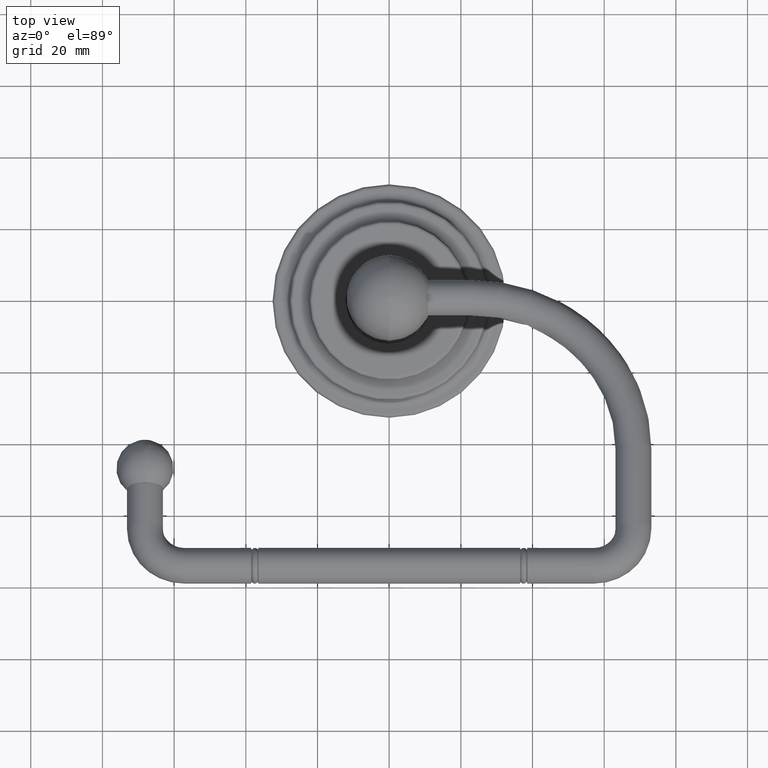
[diagram: clean part render]
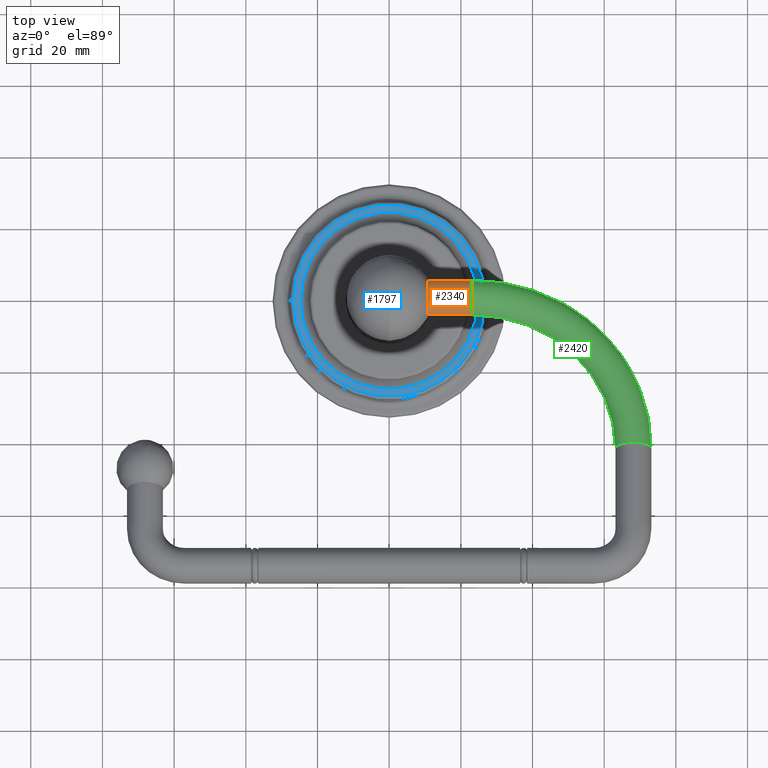
[diagram: same view with three faces highlighted in distinct colors, each labeled with its STEP entity id]
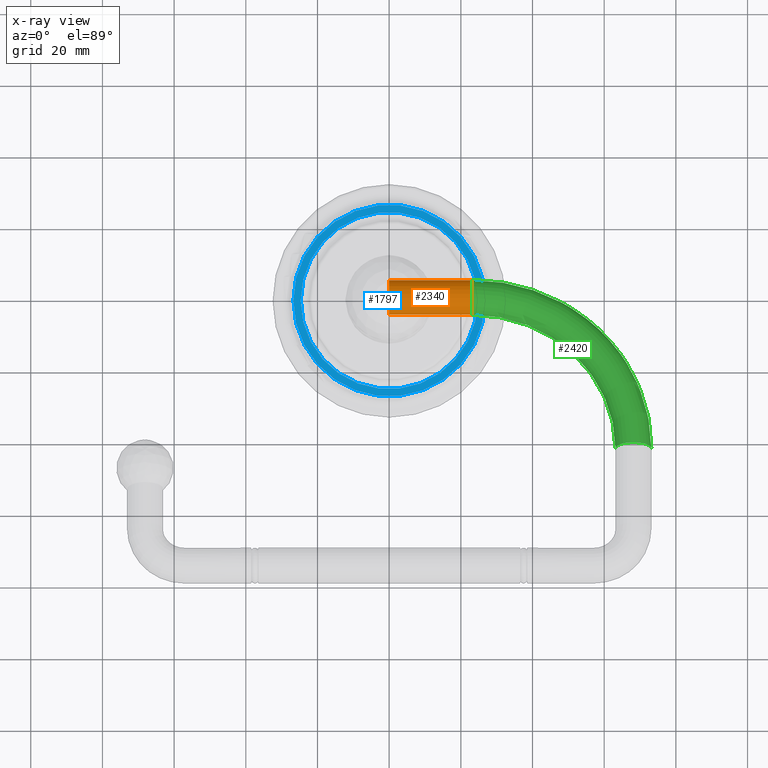
[diagram: x-ray of the same camera — body ghosted, the three highlighted faces saturated]
A machine part, top view with three faces highlighted in distinct colors.
The next image is the same camera in x-ray (body ghosted, the three faces saturated) — at least one of them is partly hidden behind the body in this view.
Their STEP definitions:

[orange] entity #2340 — the highlighted cylindrical surface (edge-blend (fillet) strip) has radius 5.0038 mm, axis along (1, 0, 0).
#660=CARTESIAN_POINT('',(0.E0,0.E0,1.947E0));
#661=DIRECTION('',(1.E0,0.E0,0.E0));
#662=DIRECTION('',(0.E0,9.396926207859E-1,-3.420201433257E-1));
#663=AXIS2_PLACEMENT_3D('',#660,#661,#662);
#705=DIRECTION('',(1.E0,0.E0,0.E0));
#706=VECTOR('',#705,9.11E-1);
#707=CARTESIAN_POINT('',(0.E0,1.851194462948E-1,1.879622031765E0));
#708=LINE('',#707,#706);
#712=DIRECTION('',(1.E0,0.E0,0.E0));
#713=VECTOR('',#712,9.11E-1);
#714=CARTESIAN_POINT('',(0.E0,-1.851194462948E-1,2.014377968235E0));
#715=LINE('',#714,#713);
#779=CARTESIAN_POINT('',(9.11E-1,0.E0,1.947E0));
#780=DIRECTION('',(1.E0,0.E0,0.E0));
#781=DIRECTION('',(0.E0,9.396926207859E-1,-3.420201433257E-1));
#782=AXIS2_PLACEMENT_3D('',#779,#780,#781);
#1459=CARTESIAN_POINT('',(9.11E-1,1.851194462948E-1,1.879622031765E0));
#1460=CARTESIAN_POINT('',(9.11E-1,-1.851194462948E-1,2.014377968235E0));
#1461=VERTEX_POINT('',#1459);
#1462=VERTEX_POINT('',#1460);
#1515=CARTESIAN_POINT('',(0.E0,1.851194462948E-1,1.879622031765E0));
#1516=CARTESIAN_POINT('',(0.E0,-1.851194462948E-1,2.014377968235E0));
#1517=VERTEX_POINT('',#1515);
#1518=VERTEX_POINT('',#1516);
#2326=CARTESIAN_POINT('',(-2.07E-1,0.E0,1.947E0));
#2327=DIRECTION('',(1.E0,0.E0,0.E0));
#2328=DIRECTION('',(0.E0,9.396926207859E-1,-3.420201433257E-1));
#2329=AXIS2_PLACEMENT_3D('',#2326,#2327,#2328);
#2330=CYLINDRICAL_SURFACE('',#2329,1.97E-1);
#2331=ORIENTED_EDGE('',*,*,#2304,.F.);
#2333=ORIENTED_EDGE('',*,*,#2332,.T.);
#2335=ORIENTED_EDGE('',*,*,#2334,.T.);
#2337=ORIENTED_EDGE('',*,*,#2336,.F.);
#2338=EDGE_LOOP('',(#2331,#2333,#2335,#2337));
#2339=FACE_OUTER_BOUND('',#2338,.F.);
#664=CIRCLE('',#663,1.97E-1);
#783=CIRCLE('',#782,1.97E-1);
#2304=EDGE_CURVE('',#1517,#1518,#664,.T.);
#2332=EDGE_CURVE('',#1517,#1461,#708,.T.);
#2334=EDGE_CURVE('',#1461,#1462,#783,.T.);
#2336=EDGE_CURVE('',#1518,#1462,#715,.T.);
#2340=ADVANCED_FACE('',(#2339),#2330,.T.);

[blue] entity #1797 — the highlighted planar face has unit normal (0, 0, 1).
#292=CARTESIAN_POINT('',(1.229081020560E-14,0.E0,3.62E-1));
#293=DIRECTION('',(0.E0,0.E0,1.E0));
#294=DIRECTION('',(1.E0,0.E0,0.E0));
#295=AXIS2_PLACEMENT_3D('',#292,#293,#294);
#300=CARTESIAN_POINT('',(1.229081020560E-14,0.E0,3.62E-1));
#301=DIRECTION('',(0.E0,0.E0,1.E0));
#302=DIRECTION('',(-1.E0,0.E0,0.E0));
#303=AXIS2_PLACEMENT_3D('',#300,#301,#302);
#354=CARTESIAN_POINT('',(1.229081020560E-14,0.E0,3.62E-1));
#355=DIRECTION('',(0.E0,0.E0,-1.E0));
#356=DIRECTION('',(1.E0,0.E0,0.E0));
#357=AXIS2_PLACEMENT_3D('',#354,#355,#356);
#370=CARTESIAN_POINT('',(1.229081020560E-14,0.E0,3.62E-1));
#371=DIRECTION('',(0.E0,0.E0,1.E0));
#372=DIRECTION('',(1.E0,0.E0,0.E0));
#373=AXIS2_PLACEMENT_3D('',#370,#371,#372);
#1389=CARTESIAN_POINT('',(9.72E-1,0.E0,3.62E-1));
#1391=VERTEX_POINT('',#1389);
#1397=CARTESIAN_POINT('',(-9.72E-1,0.E0,3.62E-1));
#1399=VERTEX_POINT('',#1397);
#1413=CARTESIAN_POINT('',(1.052E0,0.E0,3.62E-1));
#1414=CARTESIAN_POINT('',(-1.052E0,0.E0,3.62E-1));
#1415=VERTEX_POINT('',#1413);
#1416=VERTEX_POINT('',#1414);
#1781=CARTESIAN_POINT('',(1.229081020560E-14,0.E0,3.62E-1));
#1782=DIRECTION('',(0.E0,0.E0,1.E0));
#1783=DIRECTION('',(1.E0,0.E0,0.E0));
#1784=AXIS2_PLACEMENT_3D('',#1781,#1782,#1783);
#1785=PLANE('',#1784);
#1786=ORIENTED_EDGE('',*,*,#1764,.F.);
#1788=ORIENTED_EDGE('',*,*,#1787,.F.);
#1789=EDGE_LOOP('',(#1786,#1788));
#1790=FACE_OUTER_BOUND('',#1789,.F.);
#1792=ORIENTED_EDGE('',*,*,#1791,.F.);
#1794=ORIENTED_EDGE('',*,*,#1793,.T.);
#1795=EDGE_LOOP('',(#1792,#1794));
#1796=FACE_BOUND('',#1795,.F.);
#296=CIRCLE('',#295,1.052E0);
#304=CIRCLE('',#303,1.052E0);
#358=CIRCLE('',#357,9.72E-1);
#374=CIRCLE('',#373,9.72E-1);
#1764=EDGE_CURVE('',#1415,#1416,#296,.T.);
#1787=EDGE_CURVE('',#1416,#1415,#304,.T.);
#1791=EDGE_CURVE('',#1391,#1399,#358,.T.);
#1793=EDGE_CURVE('',#1391,#1399,#374,.T.);
#1797=ADVANCED_FACE('',(#1790,#1796),#1785,.T.);

[green] entity #2420 — the highlighted toroidal blend (fillet) surface has major radius 45.0088 mm and minor (blend) radius 5.0038 mm.
#771=CARTESIAN_POINT('',(9.11E-1,-1.665135324033E0,2.553059693973E0));
#772=DIRECTION('',(0.E0,-3.420201433257E-1,-9.396926207859E-1));
#773=DIRECTION('',(0.E0,9.396926207859E-1,-3.420201433257E-1));
#774=AXIS2_PLACEMENT_3D('',#771,#772,#773);
#779=CARTESIAN_POINT('',(9.11E-1,0.E0,1.947E0));
#780=DIRECTION('',(1.E0,0.E0,0.E0));
#781=DIRECTION('',(0.E0,9.396926207859E-1,-3.420201433257E-1));
#782=AXIS2_PLACEMENT_3D('',#779,#780,#781);
#787=CARTESIAN_POINT('',(9.11E-1,-1.665135324033E0,2.553059693973E0));
#788=DIRECTION('',(0.E0,-3.420201433257E-1,-9.396926207859E-1));
#789=DIRECTION('',(0.E0,9.396926207859E-1,-3.420201433257E-1));
#790=AXIS2_PLACEMENT_3D('',#787,#788,#789);
#795=CARTESIAN_POINT('',(2.683E0,-1.665135324033E0,2.553059693973E0));
#796=DIRECTION('',(0.E0,-9.396926207859E-1,3.420201433257E-1));
#797=DIRECTION('',(1.E0,0.E0,0.E0));
#798=AXIS2_PLACEMENT_3D('',#795,#796,#797);
#1459=CARTESIAN_POINT('',(9.11E-1,1.851194462948E-1,1.879622031765E0));
#1460=CARTESIAN_POINT('',(9.11E-1,-1.851194462948E-1,2.014377968235E0));
#1461=VERTEX_POINT('',#1459);
#1462=VERTEX_POINT('',#1460);
#1463=CARTESIAN_POINT('',(2.88E0,-1.665135324033E0,2.553059693973E0));
#1464=CARTESIAN_POINT('',(2.486E0,-1.665135324033E0,2.553059693973E0));
#1465=VERTEX_POINT('',#1463);
#1466=VERTEX_POINT('',#1464);
#2408=CARTESIAN_POINT('',(9.11E-1,-1.665135324033E0,2.553059693973E0));
#2409=DIRECTION('',(0.E0,-3.420201433257E-1,-9.396926207859E-1));
#2410=DIRECTION('',(0.E0,-9.396926207859E-1,3.420201433257E-1));
#2411=AXIS2_PLACEMENT_3D('',#2408,#2409,#2410);
#2412=TOROIDAL_SURFACE('',#2411,1.772E0,1.97E-1);
#2413=ORIENTED_EDGE('',*,*,#2334,.F.);
#2414=ORIENTED_EDGE('',*,*,#2391,.T.);
#2416=ORIENTED_EDGE('',*,*,#2415,.T.);
#2417=ORIENTED_EDGE('',*,*,#2387,.F.);
#2418=EDGE_LOOP('',(#2413,#2414,#2416,#2417));
#2419=FACE_OUTER_BOUND('',#2418,.F.);
#775=CIRCLE('',#774,1.575E0);
#783=CIRCLE('',#782,1.97E-1);
#791=CIRCLE('',#790,1.969E0);
#799=CIRCLE('',#798,1.97E-1);
#2334=EDGE_CURVE('',#1461,#1462,#783,.T.);
#2387=EDGE_CURVE('',#1462,#1466,#775,.T.);
#2391=EDGE_CURVE('',#1461,#1465,#791,.T.);
#2415=EDGE_CURVE('',#1465,#1466,#799,.T.);
#2420=ADVANCED_FACE('',(#2419),#2412,.T.);